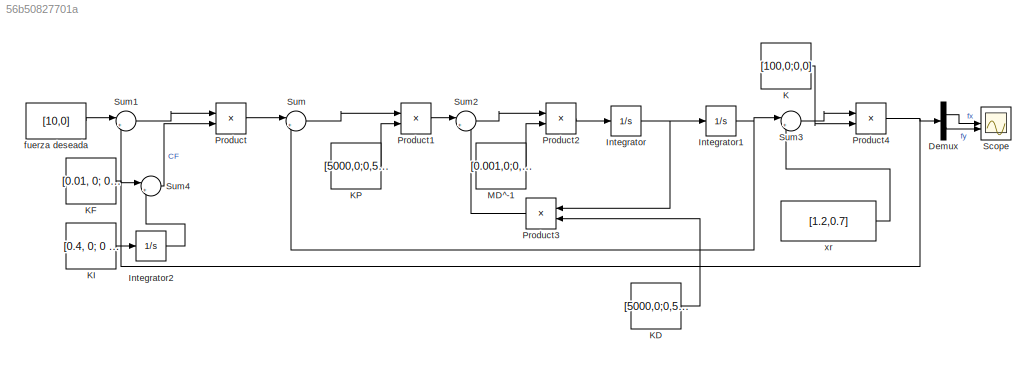
MODEL slx_56b50827701a
KIND model
CONFIG AbsTol = auto
CONFIG EnableMultiTasking = off
CONFIG FixedStep = auto
CONFIG MaxStep = auto
CONFIG MinStep = auto
CONFIG RelTol = 1e-3
CONFIG SampleTimeConstraint = Unconstrained
CONFIG SolverName = VariableStepAuto
CONFIG StartTime = 0.0
CONFIG StopTime = 20
BLOCK [Demux] Demux
  Outputs = 2
BLOCK [Integrator] Integrator
  InitialCondition = [0,0]
BLOCK [Integrator] Integrator1
  InitialCondition = [0,0]
BLOCK [Integrator] Integrator2
  InitialCondition = [0,0;0,0]
BLOCK [Constant] K
  Value = [100,0;0,0]
  VectorParams1D = off
BLOCK [Constant] KD
  Value = [5000,0;0,5000]
  VectorParams1D = off
BLOCK [Constant] KF
  Value = [0.01, 0; 0 0]
  VectorParams1D = off
BLOCK [Constant] KI
  Value = [0.4, 0; 0 0]
  VectorParams1D = off
BLOCK [Constant] KP
  Value = [5000,0;0,5000]
  VectorParams1D = off
BLOCK [Constant] MD^-1
  Value = [0.001,0;0,0.001]
  VectorParams1D = off
BLOCK [Product] Product
  Multiplication = Matrix(*)
BLOCK [Product] Product1
  Multiplication = Matrix(*)
BLOCK [Product] Product2
  Multiplication = Matrix(*)
BLOCK [Product] Product3
  Multiplication = Matrix(*)
  NameLocation = top
BLOCK [Product] Product4
  Multiplication = Matrix(*)
BLOCK [Scope] Scope
  Floating = off
  NumInputPorts = 2
  ScopeSpecificationString = Simulink.scopes.TimeScopeBlockCfg('CurrentConfiguration', extmgr.ConfigurationSet(extmgr.Configuration('Core','General UI',true),extmgr.Configuration('Core','Source UI',true),extmgr.Configuration('Sources','WiredSimulink',true),extmgr.Configuration('Visuals','Time Domain',true,'SerializedDisplays',{struct('MinYLimReal','-139.05639','MaxYLimReal','51.50751','YLabelReal','','MinYLimMag',' 0.00000','...<+1794ch>
BLOCK [Sum] Sum
  Inputs = |+-
BLOCK [Sum] Sum1
  Inputs = |+-
BLOCK [Sum] Sum2
  Inputs = |+-
BLOCK [Sum] Sum3
  Inputs = |+-
BLOCK [Sum] Sum4
  Inputs = |++
BLOCK [Constant] fuerza deseada
  Value = [10,0]
  VectorParams1D = off
BLOCK [Constant] xr
  Value = [1.2,0.7]
  VectorParams1D = off
LINE Demux:1 -> Scope:1
LINE Demux:2 -> Scope:2
NET Integrator1:1 -> Sum3:1, Sum:2
LINE Integrator2:1 -> Sum4:2
NET Integrator:1 -> Integrator1:1, Product3:1
LINE K:1 -> Product4:2
LINE KD:1 -> Product3:2
LINE KF:1 -> Sum4:1
LINE KI:1 -> Integrator2:1
LINE KP:1 -> Product1:2
LINE MD^-1:1 -> Product2:2
LINE Product1:1 -> Sum2:1
LINE Product2:1 -> Integrator:1
LINE Product3:1 -> Sum2:2
NET Product4:1 -> Demux:1, Sum1:2
LINE Product:1 -> Sum:1
LINE Sum1:1 -> Product:1
LINE Sum2:1 -> Product2:1
LINE Sum3:1 -> Product4:1
LINE Sum4:1 -> Product:2
LINE Sum:1 -> Product1:1
LINE fuerza deseada:1 -> Sum1:1
LINE xr:1 -> Sum3:2
note: NET lines group one-source signal fan-out (src -> all destinations, sorted); 1:1 wires keep LINE
